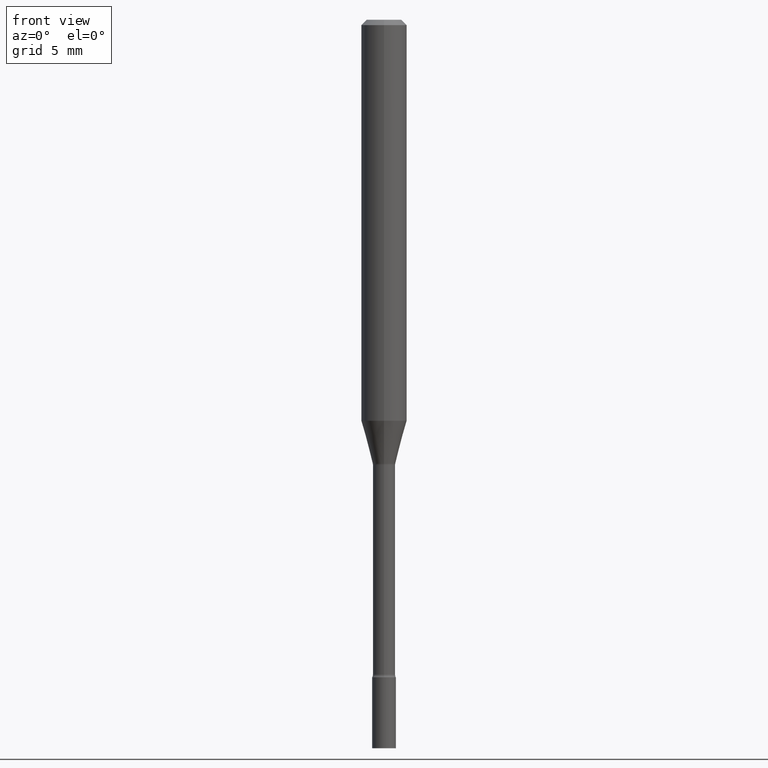
[diagram: clean part render]
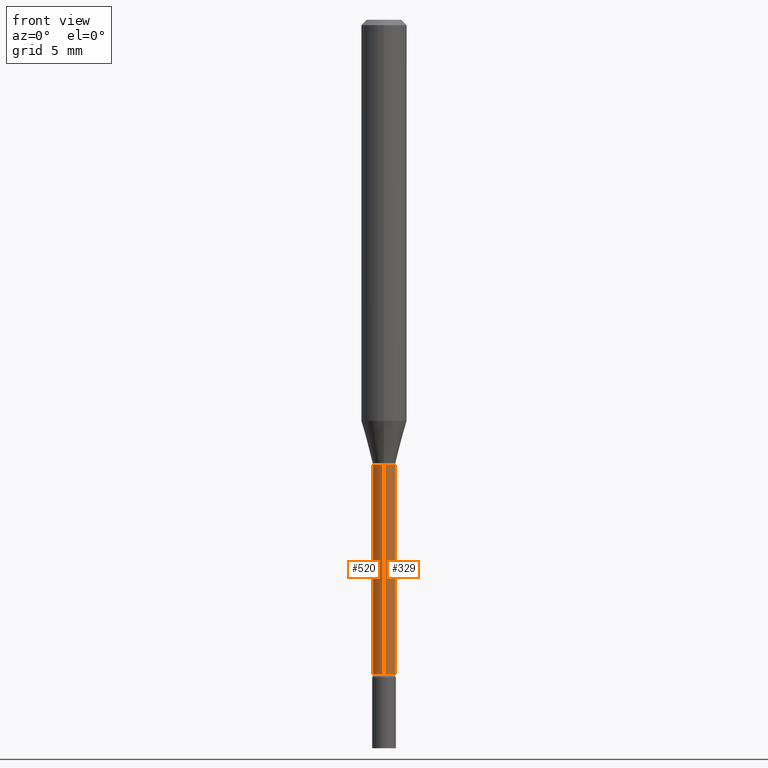
[diagram: same view with one multi-face feature highlighted, each face labeled with its STEP entity id]
A machine part, front view. The highlighted faces form ONE feature: a constant-radius fillet chain: 2 tangent blend faces with common blend radius 0.776 mm. The faces share edges in the B-rep.
Their STEP definitions:
[1] entity #329 (Cylinder):
#13 = VERTEX_POINT ( 'NONE', #78 ) ;
#52 = VERTEX_POINT ( 'NONE', #421 ) ;
#60 = CARTESIAN_POINT ( 'NONE',  ( 2.988713869080976810E-29, -4.265911236708938277E-15, -1.221974787463810497 ) ) ;
#66 = DIRECTION ( 'NONE',  ( -2.445806492688777345E-29, 3.490997752550009973E-15, 1.000000000000000000 ) ) ;
#67 = CARTESIAN_POINT ( 'NONE',  ( -2.133295098033154028E-16, -0.03055000000000000077, 1.066499813404028024E-16 ) ) ;
#78 = CARTESIAN_POINT ( 'NONE',  ( -2.133295098032855987E-16, -0.03055000000000427166, -1.221974787463810497 ) ) ;
#99 = EDGE_CURVE ( 'NONE', #328, #112, #161, .T. ) ;
#112 = VERTEX_POINT ( 'NONE', #250 ) ;
#130 = CIRCLE ( 'NONE', #212, 0.03054999999999998689 ) ;
#139 = EDGE_CURVE ( 'NONE', #52, #328, #130, .T. ) ;
#141 = CIRCLE ( 'NONE', #394, 0.03055000000000000770 ) ;
#143 = DIRECTION ( 'NONE',  ( -6.982962677686265922E-15, -1.000000000000000000, 0.000000000000000000 ) ) ;
#145 = EDGE_CURVE ( 'NONE', #52, #13, #338, .T. ) ;
#153 = FACE_OUTER_BOUND ( 'NONE', #252, .T. ) ;
#161 = LINE ( 'NONE', #490, #187 ) ;
#166 = AXIS2_PLACEMENT_3D ( 'NONE', #195, #270, #280 ) ;
#183 = DIRECTION ( 'NONE',  ( -2.445806492688777345E-29, 3.490997752550009973E-15, 1.000000000000000000 ) ) ;
#187 = VECTOR ( 'NONE', #449, 39.37007874015748143 ) ;
#195 = CARTESIAN_POINT ( 'NONE',  ( 0.000000000000000000, 0.000000000000000000, 0.000000000000000000 ) ) ;
#212 = AXIS2_PLACEMENT_3D ( 'NONE', #470, #66, #143 ) ;
#220 = ORIENTED_EDGE ( 'NONE', *, *, #139, .T. ) ;
#236 = CYLINDRICAL_SURFACE ( 'NONE', #166, 0.03055000000000000077 ) ;
#250 = CARTESIAN_POINT ( 'NONE',  ( 2.170708057747546652E-16, 0.03054999999999574375, -1.221974787463810719 ) ) ;
#252 = EDGE_LOOP ( 'NONE', ( #220, #457, #491, #356 ) ) ;
#270 = DIRECTION ( 'NONE',  ( -2.445806492688777345E-29, 3.490997752550009973E-15, 1.000000000000000000 ) ) ;
#280 = DIRECTION ( 'NONE',  ( -6.982962677686265133E-15, -1.000000000000000000, 3.490997752550009973E-15 ) ) ;
#285 = EDGE_CURVE ( 'NONE', #13, #112, #141, .T. ) ;
#290 = VECTOR ( 'NONE', #476, 39.37007874015748143 ) ;
#328 = VERTEX_POINT ( 'NONE', #378 ) ;
#329 = ADVANCED_FACE ( 'NONE', ( #153 ), #236, .T. ) ;
#338 = LINE ( 'NONE', #67, #290 ) ;
#356 = ORIENTED_EDGE ( 'NONE', *, *, #145, .F. ) ;
#378 = CARTESIAN_POINT ( 'NONE',  ( 2.239985974484157911E-16, 0.03054999999999371066, -1.797604224178627197 ) ) ;
#389 = DIRECTION ( 'NONE',  ( -6.982962677686265922E-15, -1.000000000000000000, 4.471109645931689948E-15 ) ) ;
#394 = AXIS2_PLACEMENT_3D ( 'NONE', #60, #183, #389 ) ;
#421 = CARTESIAN_POINT ( 'NONE',  ( -2.133295098032713499E-16, -0.03055000000000625965, -1.797604224178627197 ) ) ;
#449 = DIRECTION ( 'NONE',  ( -2.445806492688777345E-29, 3.490997752550010367E-15, 1.000000000000000000 ) ) ;
#457 = ORIENTED_EDGE ( 'NONE', *, *, #99, .T. ) ;
#470 = CARTESIAN_POINT ( 'NONE',  ( 4.396592082780858738E-29, -6.275432306581991000E-15, -1.797604224178627197 ) ) ;
#476 = DIRECTION ( 'NONE',  ( -2.445806492688777345E-29, 3.490997752550010367E-15, 1.000000000000000000 ) ) ;
#490 = CARTESIAN_POINT ( 'NONE',  ( 2.170708057747105629E-16, 0.03055000000000000077, -1.066499813404028024E-16 ) ) ;
#491 = ORIENTED_EDGE ( 'NONE', *, *, #285, .F. ) ;
[2] entity #520 (Cylinder):
#2 = CIRCLE ( 'NONE', #347, 0.03055000000000000770 ) ;
#13 = VERTEX_POINT ( 'NONE', #78 ) ;
#28 = FACE_OUTER_BOUND ( 'NONE', #85, .T. ) ;
#33 = ORIENTED_EDGE ( 'NONE', *, *, #485, .T. ) ;
#52 = VERTEX_POINT ( 'NONE', #421 ) ;
#67 = CARTESIAN_POINT ( 'NONE',  ( -2.133295098033154028E-16, -0.03055000000000000077, 1.066499813404028024E-16 ) ) ;
#78 = CARTESIAN_POINT ( 'NONE',  ( -2.133295098032855987E-16, -0.03055000000000427166, -1.221974787463810497 ) ) ;
#85 = EDGE_LOOP ( 'NONE', ( #127, #33, #216, #333 ) ) ;
#99 = EDGE_CURVE ( 'NONE', #328, #112, #161, .T. ) ;
#109 = DIRECTION ( 'NONE',  ( -6.982962677686265922E-15, -1.000000000000000000, 0.000000000000000000 ) ) ;
#112 = VERTEX_POINT ( 'NONE', #250 ) ;
#127 = ORIENTED_EDGE ( 'NONE', *, *, #99, .F. ) ;
#145 = EDGE_CURVE ( 'NONE', #52, #13, #338, .T. ) ;
#154 = DIRECTION ( 'NONE',  ( -6.982962677686265922E-15, -1.000000000000000000, 4.471109645931689948E-15 ) ) ;
#161 = LINE ( 'NONE', #490, #187 ) ;
#187 = VECTOR ( 'NONE', #449, 39.37007874015748143 ) ;
#216 = ORIENTED_EDGE ( 'NONE', *, *, #145, .T. ) ;
#234 = DIRECTION ( 'NONE',  ( -2.445806492688777345E-29, 3.490997752550009973E-15, 1.000000000000000000 ) ) ;
#243 = CARTESIAN_POINT ( 'NONE',  ( 2.988713869080976810E-29, -4.265911236708938277E-15, -1.221974787463810497 ) ) ;
#250 = CARTESIAN_POINT ( 'NONE',  ( 2.170708057747546652E-16, 0.03054999999999574375, -1.221974787463810719 ) ) ;
#290 = VECTOR ( 'NONE', #476, 39.37007874015748143 ) ;
#301 = CIRCLE ( 'NONE', #433, 0.03054999999999998689 ) ;
#313 = DIRECTION ( 'NONE',  ( -2.445806492688777345E-29, 3.490997752550009973E-15, 1.000000000000000000 ) ) ;
#328 = VERTEX_POINT ( 'NONE', #378 ) ;
#333 = ORIENTED_EDGE ( 'NONE', *, *, #442, .F. ) ;
#338 = LINE ( 'NONE', #67, #290 ) ;
#347 = AXIS2_PLACEMENT_3D ( 'NONE', #243, #313, #154 ) ;
#378 = CARTESIAN_POINT ( 'NONE',  ( 2.239985974484157911E-16, 0.03054999999999371066, -1.797604224178627197 ) ) ;
#399 = CYLINDRICAL_SURFACE ( 'NONE', #447, 0.03055000000000000077 ) ;
#421 = CARTESIAN_POINT ( 'NONE',  ( -2.133295098032713499E-16, -0.03055000000000625965, -1.797604224178627197 ) ) ;
#433 = AXIS2_PLACEMENT_3D ( 'NONE', #474, #481, #109 ) ;
#442 = EDGE_CURVE ( 'NONE', #112, #13, #2, .T. ) ;
#447 = AXIS2_PLACEMENT_3D ( 'NONE', #473, #234, #510 ) ;
#449 = DIRECTION ( 'NONE',  ( -2.445806492688777345E-29, 3.490997752550010367E-15, 1.000000000000000000 ) ) ;
#473 = CARTESIAN_POINT ( 'NONE',  ( 0.000000000000000000, 0.000000000000000000, 0.000000000000000000 ) ) ;
#474 = CARTESIAN_POINT ( 'NONE',  ( 4.396592082780858738E-29, -6.275432306581991000E-15, -1.797604224178627197 ) ) ;
#476 = DIRECTION ( 'NONE',  ( -2.445806492688777345E-29, 3.490997752550010367E-15, 1.000000000000000000 ) ) ;
#481 = DIRECTION ( 'NONE',  ( -2.445806492688777345E-29, 3.490997752550009973E-15, 1.000000000000000000 ) ) ;
#485 = EDGE_CURVE ( 'NONE', #328, #52, #301, .T. ) ;
#490 = CARTESIAN_POINT ( 'NONE',  ( 2.170708057747105629E-16, 0.03055000000000000077, -1.066499813404028024E-16 ) ) ;
#510 = DIRECTION ( 'NONE',  ( -6.982962677686265133E-15, -1.000000000000000000, 3.490997752550009973E-15 ) ) ;
#520 = ADVANCED_FACE ( 'NONE', ( #28 ), #399, .T. ) ;